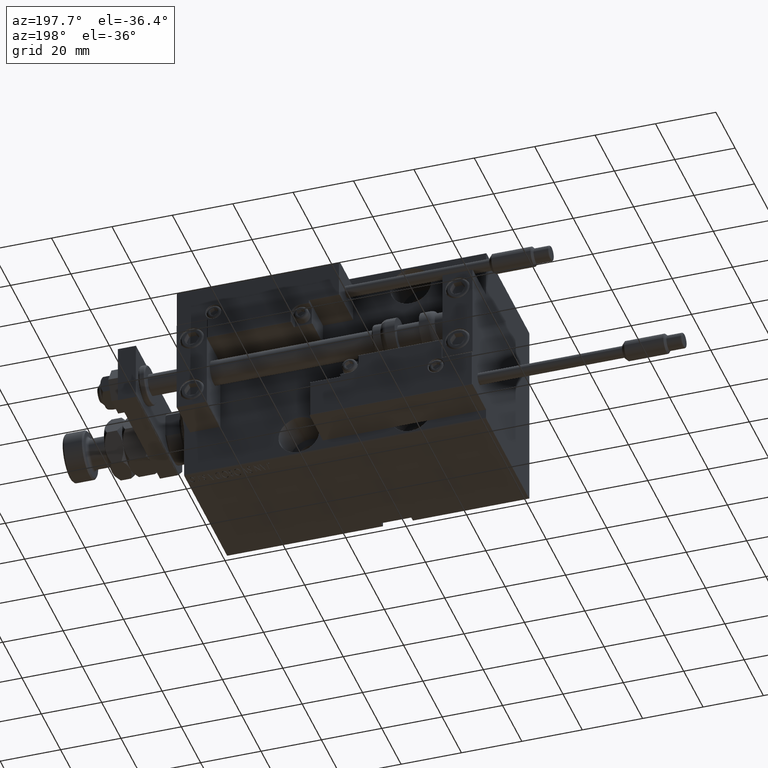
[diagram: clean part render]
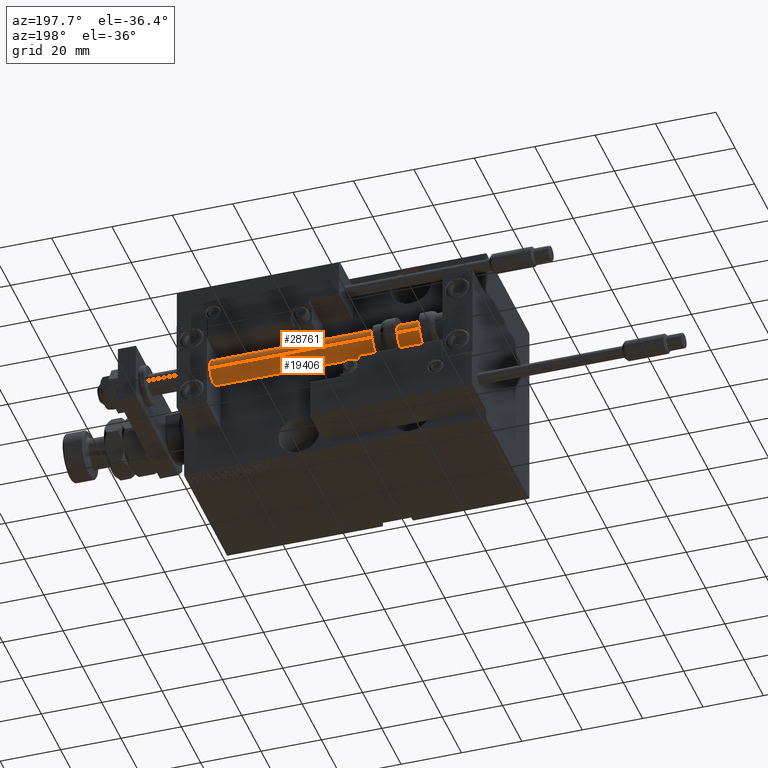
[diagram: same view with one multi-face feature highlighted, each face labeled with its STEP entity id]
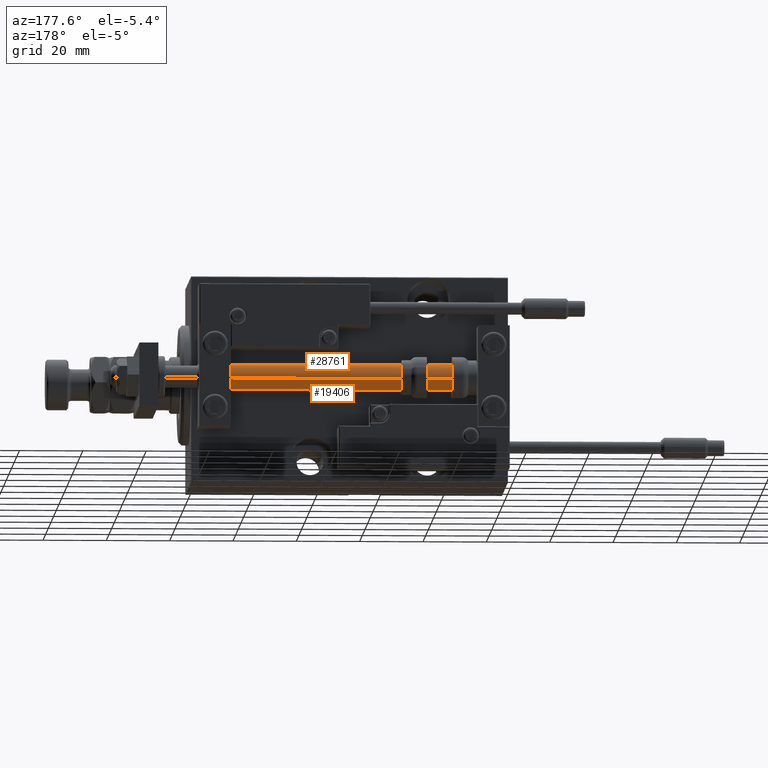
[diagram: same view with one multi-face feature highlighted, each face labeled with its STEP entity id]
A machine part, auxiliary view. The highlighted faces form ONE feature: a constant-radius fillet chain: 2 tangent blend faces with common blend radius 4 mm. The faces share edges in the B-rep.
A second angle (auxiliary view) of the same feature is appended — it is thin or edge-on in the first view.
Their STEP definitions:
[1] entity #28761 (Cylinder):
#2765 = EDGE_LOOP ( 'NONE', ( #32690, #15989, #11209, #51364 ) ) ;
#4458 = CIRCLE ( 'NONE', #15322, 4.000000000000000000 ) ;
#8603 = VERTEX_POINT ( 'NONE', #22367 ) ;
#11209 = ORIENTED_EDGE ( 'NONE', *, *, #36306, .T. ) ;
#11369 = CARTESIAN_POINT ( 'NONE',  ( 0.000000000000000000, 0.000000000000000000, 2.000000000000029310 ) ) ;
#11407 = CARTESIAN_POINT ( 'NONE',  ( 4.000000000000000000, 4.898587196589412829E-16, 100.0000000000000000 ) ) ;
#12856 = DIRECTION ( 'NONE',  ( -0.000000000000000000, -0.000000000000000000, -1.000000000000000000 ) ) ;
#13179 = VECTOR ( 'NONE', #12856, 1000.000000000000000 ) ;
#13311 = LINE ( 'NONE', #13571, #36520 ) ;
#13571 = CARTESIAN_POINT ( 'NONE',  ( -4.000000000000000000, 0.000000000000000000, 100.0000000000000000 ) ) ;
#15322 = AXIS2_PLACEMENT_3D ( 'NONE', #51719, #43876, #31814 ) ;
#15989 = ORIENTED_EDGE ( 'NONE', *, *, #21911, .F. ) ;
#16216 = VERTEX_POINT ( 'NONE', #29327 ) ;
#18118 = VERTEX_POINT ( 'NONE', #49117 ) ;
#21210 = AXIS2_PLACEMENT_3D ( 'NONE', #11369, #22910, #43353 ) ;
#21764 = LINE ( 'NONE', #33305, #13179 ) ;
#21911 = EDGE_CURVE ( 'NONE', #8603, #23165, #4458, .T. ) ;
#21979 = EDGE_CURVE ( 'NONE', #16216, #18118, #42966, .T. ) ;
#22367 = CARTESIAN_POINT ( 'NONE',  ( -4.000000000000000000, 0.000000000000000000, 100.0000000000000000 ) ) ;
#22910 = DIRECTION ( 'NONE',  ( -0.000000000000000000, -0.000000000000000000, 1.000000000000000000 ) ) ;
#23165 = VERTEX_POINT ( 'NONE', #11407 ) ;
#25649 = CYLINDRICAL_SURFACE ( 'NONE', #46416, 4.000000000000000000 ) ;
#26187 = CARTESIAN_POINT ( 'NONE',  ( 0.000000000000000000, 0.000000000000000000, 100.0000000000000000 ) ) ;
#28761 = ADVANCED_FACE ( 'NONE', ( #30621 ), #25649, .T. ) ;
#29327 = CARTESIAN_POINT ( 'NONE',  ( -4.000000000000000000, 0.000000000000000000, 2.000000000000029310 ) ) ;
#30621 = FACE_OUTER_BOUND ( 'NONE', #2765, .T. ) ;
#31814 = DIRECTION ( 'NONE',  ( 1.000000000000000000, 0.000000000000000000, 0.000000000000000000 ) ) ;
#32690 = ORIENTED_EDGE ( 'NONE', *, *, #39922, .F. ) ;
#33305 = CARTESIAN_POINT ( 'NONE',  ( 4.000000000000000000, 4.898587196589412829E-16, 100.0000000000000000 ) ) ;
#34056 = DIRECTION ( 'NONE',  ( -1.000000000000000000, 0.000000000000000000, 0.000000000000000000 ) ) ;
#36306 = EDGE_CURVE ( 'NONE', #8603, #16216, #13311, .T. ) ;
#36520 = VECTOR ( 'NONE', #45544, 1000.000000000000000 ) ;
#39922 = EDGE_CURVE ( 'NONE', #23165, #18118, #21764, .T. ) ;
#42966 = CIRCLE ( 'NONE', #21210, 4.000000000000000000 ) ;
#43353 = DIRECTION ( 'NONE',  ( 1.000000000000000000, 0.000000000000000000, 0.000000000000000000 ) ) ;
#43876 = DIRECTION ( 'NONE',  ( 0.000000000000000000, 0.000000000000000000, 1.000000000000000000 ) ) ;
#45544 = DIRECTION ( 'NONE',  ( -0.000000000000000000, -0.000000000000000000, -1.000000000000000000 ) ) ;
#46416 = AXIS2_PLACEMENT_3D ( 'NONE', #26187, #49505, #34056 ) ;
#49117 = CARTESIAN_POINT ( 'NONE',  ( 4.000000000000000000, 4.898587196589412829E-16, 2.000000000000029310 ) ) ;
#49505 = DIRECTION ( 'NONE',  ( -0.000000000000000000, -0.000000000000000000, -1.000000000000000000 ) ) ;
#51364 = ORIENTED_EDGE ( 'NONE', *, *, #21979, .T. ) ;
#51719 = CARTESIAN_POINT ( 'NONE',  ( 0.000000000000000000, 0.000000000000000000, 100.0000000000000000 ) ) ;
[2] entity #19406 (Cylinder):
#1401 = AXIS2_PLACEMENT_3D ( 'NONE', #50217, #6728, #31082 ) ;
#5513 = DIRECTION ( 'NONE',  ( -0.000000000000000000, -0.000000000000000000, -1.000000000000000000 ) ) ;
#6728 = DIRECTION ( 'NONE',  ( 0.000000000000000000, 0.000000000000000000, 1.000000000000000000 ) ) ;
#7520 = ORIENTED_EDGE ( 'NONE', *, *, #36306, .F. ) ;
#7651 = ORIENTED_EDGE ( 'NONE', *, *, #39922, .T. ) ;
#8603 = VERTEX_POINT ( 'NONE', #22367 ) ;
#8910 = FACE_OUTER_BOUND ( 'NONE', #36525, .T. ) ;
#9429 = DIRECTION ( 'NONE',  ( -1.000000000000000000, 0.000000000000000000, 0.000000000000000000 ) ) ;
#9519 = ORIENTED_EDGE ( 'NONE', *, *, #37771, .F. ) ;
#10942 = CIRCLE ( 'NONE', #41116, 4.000000000000000000 ) ;
#11407 = CARTESIAN_POINT ( 'NONE',  ( 4.000000000000000000, 4.898587196589412829E-16, 100.0000000000000000 ) ) ;
#12273 = CIRCLE ( 'NONE', #1401, 4.000000000000000000 ) ;
#12856 = DIRECTION ( 'NONE',  ( -0.000000000000000000, -0.000000000000000000, -1.000000000000000000 ) ) ;
#13179 = VECTOR ( 'NONE', #12856, 1000.000000000000000 ) ;
#13311 = LINE ( 'NONE', #13571, #36520 ) ;
#13571 = CARTESIAN_POINT ( 'NONE',  ( -4.000000000000000000, 0.000000000000000000, 100.0000000000000000 ) ) ;
#16216 = VERTEX_POINT ( 'NONE', #29327 ) ;
#17049 = EDGE_CURVE ( 'NONE', #18118, #16216, #10942, .T. ) ;
#18118 = VERTEX_POINT ( 'NONE', #49117 ) ;
#19406 = ADVANCED_FACE ( 'NONE', ( #8910 ), #36988, .T. ) ;
#21764 = LINE ( 'NONE', #33305, #13179 ) ;
#22367 = CARTESIAN_POINT ( 'NONE',  ( -4.000000000000000000, 0.000000000000000000, 100.0000000000000000 ) ) ;
#23062 = DIRECTION ( 'NONE',  ( 1.000000000000000000, 0.000000000000000000, 0.000000000000000000 ) ) ;
#23165 = VERTEX_POINT ( 'NONE', #11407 ) ;
#24095 = CARTESIAN_POINT ( 'NONE',  ( 0.000000000000000000, 0.000000000000000000, 2.000000000000029310 ) ) ;
#28621 = AXIS2_PLACEMENT_3D ( 'NONE', #32768, #5513, #9429 ) ;
#29327 = CARTESIAN_POINT ( 'NONE',  ( -4.000000000000000000, 0.000000000000000000, 2.000000000000029310 ) ) ;
#31082 = DIRECTION ( 'NONE',  ( 1.000000000000000000, 0.000000000000000000, 0.000000000000000000 ) ) ;
#32768 = CARTESIAN_POINT ( 'NONE',  ( 0.000000000000000000, 0.000000000000000000, 100.0000000000000000 ) ) ;
#33305 = CARTESIAN_POINT ( 'NONE',  ( 4.000000000000000000, 4.898587196589412829E-16, 100.0000000000000000 ) ) ;
#35925 = DIRECTION ( 'NONE',  ( -0.000000000000000000, -0.000000000000000000, 1.000000000000000000 ) ) ;
#36306 = EDGE_CURVE ( 'NONE', #8603, #16216, #13311, .T. ) ;
#36520 = VECTOR ( 'NONE', #45544, 1000.000000000000000 ) ;
#36525 = EDGE_LOOP ( 'NONE', ( #9519, #7651, #49659, #7520 ) ) ;
#36988 = CYLINDRICAL_SURFACE ( 'NONE', #28621, 4.000000000000000000 ) ;
#37771 = EDGE_CURVE ( 'NONE', #23165, #8603, #12273, .T. ) ;
#39922 = EDGE_CURVE ( 'NONE', #23165, #18118, #21764, .T. ) ;
#41116 = AXIS2_PLACEMENT_3D ( 'NONE', #24095, #35925, #23062 ) ;
#45544 = DIRECTION ( 'NONE',  ( -0.000000000000000000, -0.000000000000000000, -1.000000000000000000 ) ) ;
#49117 = CARTESIAN_POINT ( 'NONE',  ( 4.000000000000000000, 4.898587196589412829E-16, 2.000000000000029310 ) ) ;
#49659 = ORIENTED_EDGE ( 'NONE', *, *, #17049, .T. ) ;
#50217 = CARTESIAN_POINT ( 'NONE',  ( 0.000000000000000000, 0.000000000000000000, 100.0000000000000000 ) ) ;